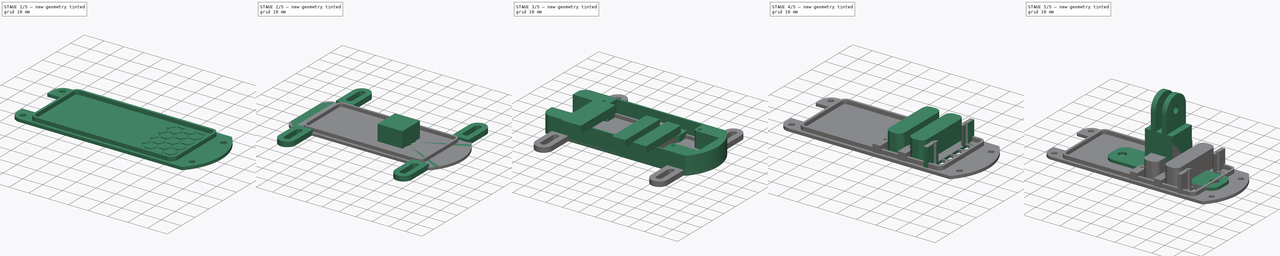
[diagram: build sequence overview — one tinted view per stage of 5, left to right]
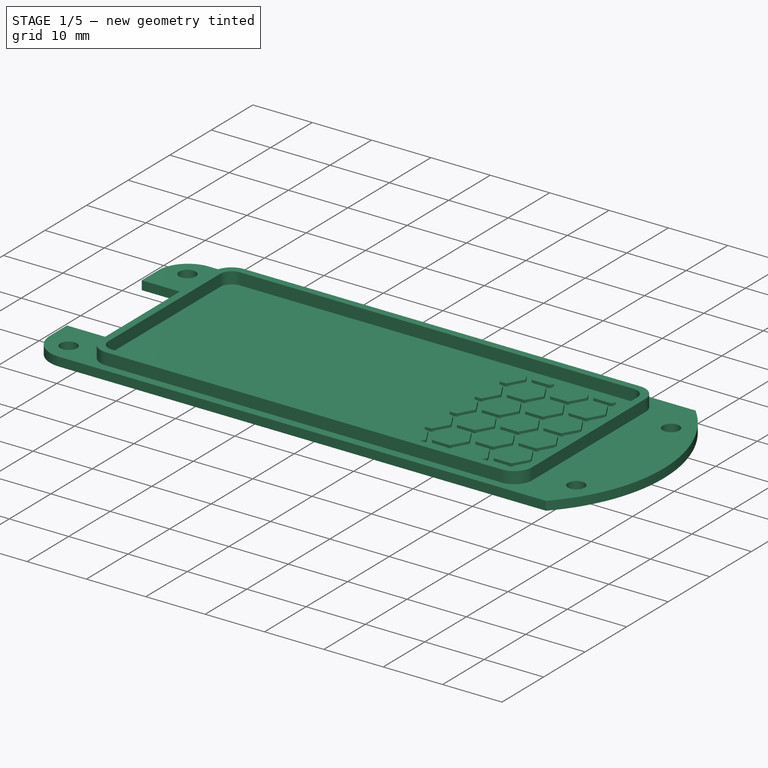
[diagram: stage 1 of 5 — iso view after this stage's code; geometry added in this stage tinted green]
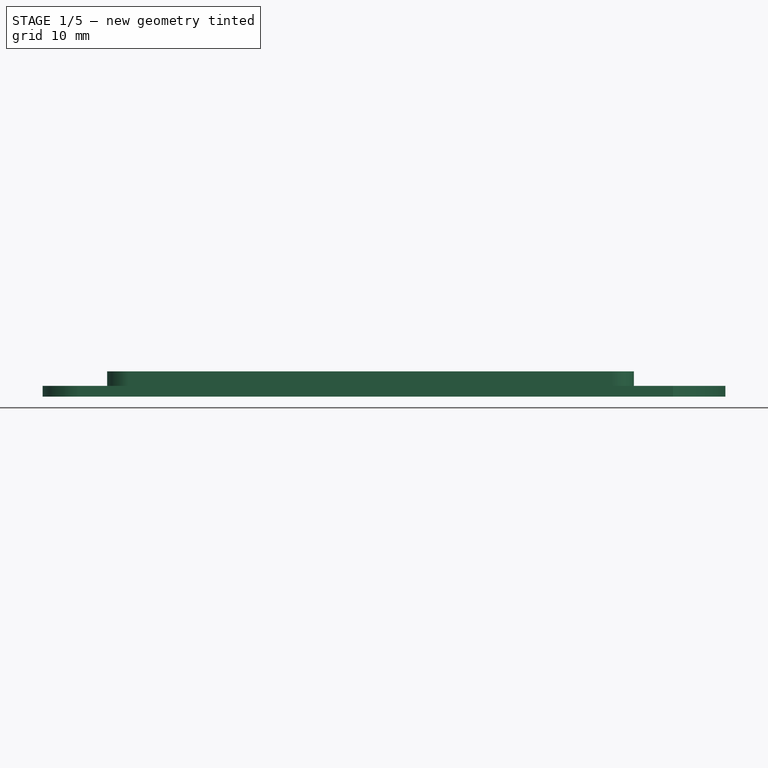
[diagram: stage 1 of 5 — front view after this stage's code; geometry added in this stage tinted green]
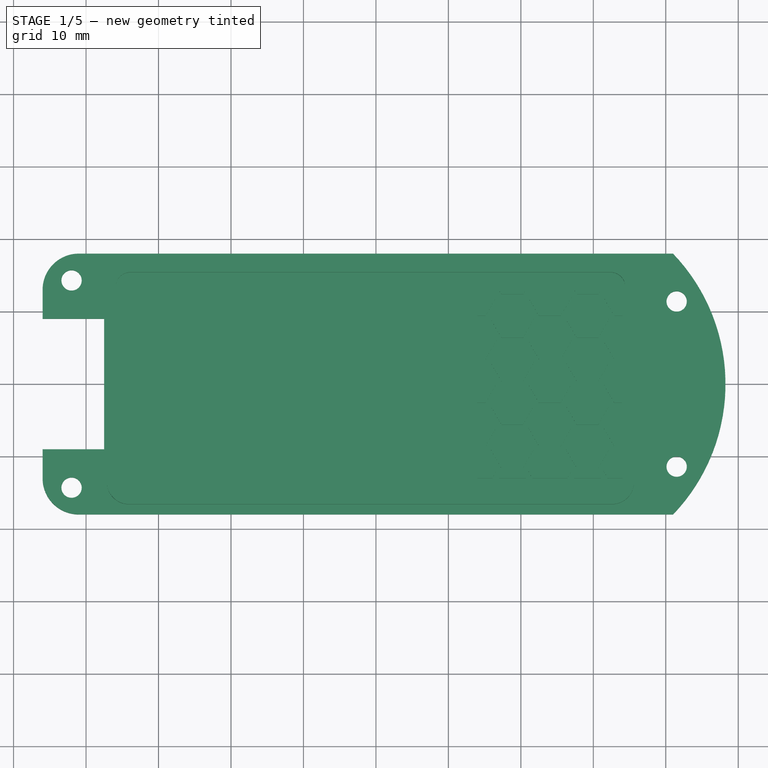
[diagram: stage 1 of 5 — top view after this stage's code; geometry added in this stage tinted green]
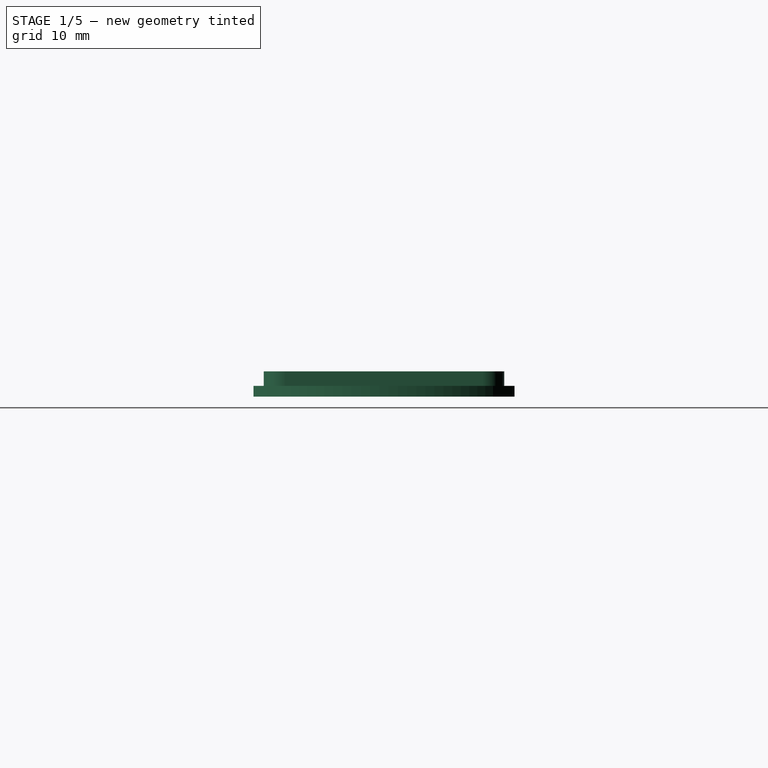
[diagram: stage 1 of 5 — right view after this stage's code; geometry added in this stage tinted green]
FCSTD DOCUMENT  (FreeCAD 0.19R)
Label: pizerohingedcasecamera_fisheye
License: All rights reserved
LicenseURL: http://en.wikipedia.org/wiki/All_rights_reserved
objects: Sketcher::SketchObject×11, PartDesign::Pad×11, PartDesign::Body×11, Part::Box×6, Part::MultiFuse×5, Part::FeaturePython×4, Part::Cut×4, PartDesign::ShapeBinder×4, App::Part×3, Part::Fillet×2, Part::Feature×1, Part::Cylinder×1, Part::Mirroring×1, Part::MultiCommon×1
note: 70 computed .brp shape members not serialized (recipe doc carries the construction recipe); baked Part::Feature solids carry a one-line shape summary decoded from their .brp

FEATURE [Sketcher::SketchObject] Sketch
  FullyConstrained = true
  MapMode = 5
  Support = -> [XY_Plane009]
  sketch-geometry (7):
    g0: LineSegment StartX=-56 StartY=13 StartZ=0 EndX=-56 EndY=-13 EndZ=0
    g1: LineSegment StartX=-51 StartY=18 StartZ=0 EndX=31 EndY=18 EndZ=0
    g2: LineSegment StartX=31 StartY=-18 StartZ=0 EndX=-51 EndY=-18 EndZ=0
    g3: ArcOfCircle CenterX=-51 CenterY=13 CenterZ=0 NormalX=0 NormalY=0 NormalZ=1 AngleXU=0 Radius=5 StartAngle=1.5708 EndAngle=3.14159
    g4: ArcOfCircle CenterX=-51 CenterY=-13 CenterZ=0 NormalX=0 NormalY=0 NormalZ=1 AngleXU=0 Radius=5 StartAngle=3.14159 EndAngle=4.71239
    g5: Circle CenterX=0 CenterY=0 CenterZ=0 NormalX=0 NormalY=0 NormalZ=1 AngleXU=0 Radius=8.5
    g6: ArcOfCircle CenterX=12.2383 CenterY=3.09831e-11 CenterZ=0 NormalX=0 NormalY=0 NormalZ=1 AngleXU=0 Radius=26 StartAngle=5.5185 EndAngle=7.04787
  constraints (17):
    c: Symmetric(g0,g0,g-1)
    c: Horizontal(g1)
    c: Horizontal(g2)
    c: Symmetric(g2,g1,g-1)
    c: Tangent(g3,g1) = 1.5708
    c: Tangent(g3,g0) = -1.5708
    c: DistanceX(g0,g-1) = 56
    c: DistanceY(g2,g-1) = 18
    c: Radius(g3) = 5
    c: Coincident(g5,g-1)
    c: Radius(g5) = 8.5
    c: Coincident(g6,g2)
    c: Radius(g6) = 26
    c: Coincident(g1,g6)
    c: Tangent(g4,g2) = 1.5708
    c: Tangent(g4,g0) = -1.5708
    c: DistanceX(g1,g1) = 82
FEATURE [Sketcher::SketchObject] Sketch020
  FullyConstrained = false
  MapMode = 5
  Support = -> [XY_Plane010]
  sketch-geometry (28):
    g0: LineSegment StartX=-56 StartY=13 StartZ=0 EndX=-56 EndY=9 EndZ=0
    g1: LineSegment StartX=-51 StartY=18 StartZ=0 EndX=31 EndY=18 EndZ=0
    g2: LineSegment StartX=31 StartY=-18 StartZ=0 EndX=-51 EndY=-18 EndZ=0
    g3: ArcOfCircle CenterX=-51 CenterY=13 CenterZ=0 NormalX=0 NormalY=0 NormalZ=1 AngleXU=0 Radius=5 StartAngle=1.5708 EndAngle=3.14159
    g4: ArcOfCircle CenterX=-51 CenterY=-13 CenterZ=0 NormalX=0 NormalY=0 NormalZ=1 AngleXU=0 Radius=5 StartAngle=3.14159 EndAngle=4.71239
    g5: LineSegment StartX=-56 StartY=-9 StartZ=0 EndX=-47.5 EndY=-9 EndZ=0
    g6: LineSegment StartX=-47.5 StartY=-9 StartZ=0 EndX=-47.5 EndY=-17 EndZ=0
    g7: LineSegment StartX=-47.5 StartY=-17 StartZ=0 EndX=26 EndY=-17 EndZ=0
    g8: LineSegment StartX=-56 StartY=9 StartZ=0 EndX=-47.5 EndY=9 EndZ=0
    g9: LineSegment StartX=-47.5 StartY=9 StartZ=0 EndX=-47.5 EndY=17 EndZ=0
    g10: LineSegment StartX=-47.5 StartY=17 StartZ=0 EndX=26 EndY=17 EndZ=0
    g11: LineSegment StartX=29 StartY=8.86 StartZ=0 EndX=29 EndY=14 EndZ=0
    g12: LineSegment StartX=29 StartY=-8.86 StartZ=0 EndX=29 EndY=-14 EndZ=0
    g13: LineSegment StartX=29.5 StartY=-8.36 StartZ=0 EndX=31.5 EndY=-8.36 EndZ=0
    g14: LineSegment StartX=33 StartY=-6.86 StartZ=0 EndX=33 EndY=6.86 EndZ=0
    g15: LineSegment StartX=29.5 StartY=8.36 StartZ=0 EndX=31.5 EndY=8.36 EndZ=0
    g16: LineSegment StartX=-56 StartY=-9 StartZ=0 EndX=-56 EndY=-13 EndZ=0
    g17: ArcOfCircle CenterX=26 CenterY=14 CenterZ=0 NormalX=0 NormalY=0 NormalZ=1 AngleXU=0 Radius=3 StartAngle=0 EndAngle=1.5708
    g18: ArcOfCircle CenterX=29.5 CenterY=8.86 CenterZ=0 NormalX=0 NormalY=0 NormalZ=1 AngleXU=0 Radius=0.5 StartAngle=3.14159 EndAngle=4.71239
    g19: ArcOfCircle CenterX=31.5 CenterY=6.86 CenterZ=0 NormalX=0 NormalY=0 NormalZ=1 AngleXU=0 Radius=1.5 StartAngle=0 EndAngle=1.5708
    g20: ArcOfCircle CenterX=29.5 CenterY=-8.86 CenterZ=0 NormalX=0 NormalY=0 NormalZ=1 AngleXU=0 Radius=0.5 StartAngle=1.5708 EndAngle=3.14159
    g21: ArcOfCircle CenterX=31.5 CenterY=-6.86 CenterZ=0 NormalX=0 NormalY=0 NormalZ=1 AngleXU=0 Radius=1.5 StartAngle=4.71239 EndAngle=6.28319
    g22: ArcOfCircle CenterX=26 CenterY=-14 CenterZ=0 NormalX=0 NormalY=0 NormalZ=1 AngleXU=0 Radius=3 StartAngle=4.71239 EndAngle=6.28319
    g23: Circle CenterX=-52 CenterY=-14.3 CenterZ=0 NormalX=0 NormalY=0 NormalZ=1 AngleXU=0 Radius=1
    g24: Circle CenterX=31.5 CenterY=11.4 CenterZ=0 NormalX=0 NormalY=0 NormalZ=1 AngleXU=0 Radius=1
    g25: Circle CenterX=31.5 CenterY=-11.4 CenterZ=0 NormalX=0 NormalY=0 NormalZ=1 AngleXU=0 Radius=1
    g26: Circle CenterX=-52 CenterY=14.3 CenterZ=0 NormalX=0 NormalY=0 NormalZ=1 AngleXU=0 Radius=1
    g27: ArcOfCircle CenterX=12.2383 CenterY=9e-16 CenterZ=0 NormalX=0 NormalY=0 NormalZ=1 AngleXU=0 Radius=26 StartAngle=5.5185 EndAngle=7.04787
  constraints (67):
    c: Symmetric(g16,g0,g-1)
    c: Horizontal(g1)
    c: Horizontal(g2)
    c: Symmetric(g2,g1,g-1)
    c: Tangent(g3,g1) = 1.5708
    c: Tangent(g3,g0) = -1.5708
    c: DistanceX(g16,g-1) = 56
    c: DistanceY(g2,g-1) = 18
    c: Radius(g3) = 5
    c: Horizontal(g5)
    c: Coincident(g6,g5)
    c: Vertical(g6)
    c: Coincident(g7,g6)
    c: Horizontal(g7)
    c: Horizontal(g8)
    c: Coincident(g9,g8)
    c: Coincident(g10,g9)
    c: Horizontal(g10)
    c: Vertical(g11)
    c: Vertical(g12)
    c: Vertical(g14)
    c: Horizontal(g15)
    c: Symmetric(g11,g12,g-1)
    c: Symmetric(g10,g7,g-1)
    c: Symmetric(g5,g8,g-1)
    c: Coincident(g0,g8)
    c: Coincident(g16,g5)
    c: Tangent(g0,g16)
    c: DistanceY(g9,g1) = 1
    c: Tangent(g17,g10) = 1.5708
    c: Tangent(g17,g11) = -1.5708
    c: Symmetric(g15,g13,g-1)
    c: Tangent(g20,g12) = -1.5708
    c: Horizontal(g13)
    c: Tangent(g20,g13) = 1.5708
    c: Tangent(g21,g14) = -1.5708
    c: Tangent(g19,g14) = -1.5708
    c: Tangent(g18,g15) = -1.5708
    c: Tangent(g18,g11) = 1.5708
    c: Tangent(g19,g15) = 1.5708
    c: Tangent(g21,g13) = -1.5708
    c: Tangent(g22,g12) = 1.5708
    c: Tangent(g22,g7) = -1.5708
    c: Radius(g23) = 1
    c: Symmetric(g26,g23,g-1)
    c: Equal(g26,g23)
    c: Equal(g25,g24)
    c: Symmetric(g24,g25,g-1)
    c: Radius(g25) = 1
    c: DistanceY(g-1,g24) = 11.4
    c: DistanceY(g-1,g26) = 14.3
    c: DistanceX(g-1,g14) = 33
    c: Radius(g22) = 3
    c: Radius(g20) = 0.5
    c: Radius(g21) = 1.5
    c: DistanceY(g6,g6) = 8
    c: DistanceX(g5,g5) = 8.5
    c: DistanceY(g13,g-1) = 8.36
    c: DistanceX(g26,g-1) = 52
    c: DistanceX(g-1,g24) = 31.5
    c: Vertical(g9)
    c: Coincident(g27,g1)
    c: Coincident(g27,g2)
    c: Radius(g27) = 26
    c: DistanceX(g1,g1) = 82
    c: Tangent(g4,g2) = 1.5708
    c: Tangent(g4,g16) = -1.5708
FEATURE [PartDesign::Pad] Pad007
  Direction = (1,1,1)
  Length = 20
  Length2 = 100
  Profile = -> Sketch020
  Type = 0
FEATURE [PartDesign::ShapeBinder] ShapeBinder002
  Support = -> [Sketch020]
  TraceSupport = false
FEATURE [PartDesign::ShapeBinder] ShapeBinder003
  Support = -> [Pad007]
  TraceSupport = false
FEATURE [Sketcher::SketchObject] Sketch028
  ExternalGeometry = -> [ShapeBinder002,ShapeBinder003]
  FullyConstrained = true
  MapMode = 5
  Support = -> [XY_Plane019]
  sketch-geometry (14):
    g0: LineSegment StartX=-51 StartY=18 StartZ=0 EndX=31 EndY=18 EndZ=0
    g1: LineSegment StartX=31 StartY=-18 StartZ=0 EndX=-51 EndY=-18 EndZ=0
    g2: ArcOfCircle CenterX=-51 CenterY=13 CenterZ=0 NormalX=0 NormalY=0 NormalZ=1 AngleXU=0 Radius=5 StartAngle=1.5708 EndAngle=3.14159
    g3: ArcOfCircle CenterX=-51 CenterY=-13 CenterZ=0 NormalX=0 NormalY=0 NormalZ=1 AngleXU=0 Radius=5 StartAngle=3.14159 EndAngle=4.71239
    g4: ArcOfCircle CenterX=12.2383 CenterY=2e-15 CenterZ=0 NormalX=0 NormalY=0 NormalZ=1 AngleXU=0 Radius=26 StartAngle=5.5185 EndAngle=7.04787
    g5: Circle CenterX=31.5 CenterY=11.4 CenterZ=0 NormalX=0 NormalY=0 NormalZ=1 AngleXU=0 Radius=1.4
    g6: Circle CenterX=31.5 CenterY=-11.4 CenterZ=0 NormalX=0 NormalY=0 NormalZ=1 AngleXU=0 Radius=1.4
    g7: Circle CenterX=-52 CenterY=14.3 CenterZ=0 NormalX=0 NormalY=0 NormalZ=1 AngleXU=0 Radius=1.4
    g8: Circle CenterX=-52 CenterY=-14.3 CenterZ=0 NormalX=0 NormalY=0 NormalZ=1 AngleXU=0 Radius=1.4
    g9: LineSegment StartX=-56 StartY=13 StartZ=0 EndX=-56 EndY=9 EndZ=0
    g10: LineSegment StartX=-56 StartY=-13 StartZ=0 EndX=-56 EndY=-9 EndZ=0
    g11: LineSegment StartX=-56 StartY=-9 StartZ=0 EndX=-47.5 EndY=-9 EndZ=0
    g12: LineSegment StartX=-56 StartY=9 StartZ=0 EndX=-47.5 EndY=9 EndZ=0
    g13: LineSegment StartX=-47.5 StartY=9 StartZ=0 EndX=-47.5 EndY=-9 EndZ=0
  constraints (32):
    c: Horizontal(g0)
    c: Horizontal(g1)
    c: Symmetric(g1,g0,g-1)
    c: Tangent(g2,g0) = 1.5708
    c: DistanceY(g1,g-1) = 18
    c: Radius(g2) = 5
    c: Coincident(g4,g1)
    c: Radius(g4) = 26
    c: Coincident(g0,g4)
    c: Tangent(g3,g1) = 1.5708
    c: DistanceX(g0,g0) = 82
    c: Coincident(g5,g-6)
    c: Coincident(g6,g-5)
    c: Equal(g5,g6)
    c: Coincident(g7,g-3)
    c: Coincident(g8,g-4)
    c: Radius(g5) = 1.4
    c: Equal(g6,g8)
    c: Equal(g8,g7)
    c: Vertical(g9)
    c: Vertical(g10)
    c: Tangent(g10,g3) = 1.5708
    c: Tangent(g9,g2) = -1.5708
    c: Coincident(g10,g-12)
    c: Coincident(g11,g10)
    c: Coincident(g11,g-12)
    c: Coincident(g9,g-7)
    c: Coincident(g12,g9)
    c: Coincident(g12,g-8)
    c: Coincident(g13,g12)
    c: Coincident(g13,g11)
    c: Radius(g3) = 5
FEATURE [PartDesign::Pad] Pad016
  Direction = (1,1,1)
  Length = 1.5
  Length2 = 100
  Profile = -> Sketch028
  Type = 0
FEATURE [PartDesign::Body] Body011  label="cover body"
  Group = -> [Sketch028,Pad016,ShapeBinder002,ShapeBinder003]
  Origin = -> Origin019
  Tip = -> Pad016
FEATURE [PartDesign::ShapeBinder] ShapeBinder005
  Support = -> [Pad007]
  TraceSupport = false
FEATURE [Sketcher::SketchObject] Sketch029
  ExternalGeometry = -> [ShapeBinder005]
  FullyConstrained = false
  MapMode = 5
  Support = -> [XY_Plane020]
  sketch-geometry (24):
    g0: LineSegment StartX=-47.1 StartY=13.6 StartZ=0 EndX=-47.1 EndY=-13.6 EndZ=0
    g1: LineSegment StartX=-44.1 StartY=-16.6 StartZ=0 EndX=22.6 EndY=-16.6 EndZ=0
    g2: LineSegment StartX=-44.1 StartY=16.6 StartZ=0 EndX=22.6 EndY=16.6 EndZ=0
    g3: LineSegment StartX=25.6 StartY=13.6 StartZ=0 EndX=25.6 EndY=-13.6 EndZ=0
    g4: LineSegment StartX=-43.9 StartY=15.4 StartZ=0 EndX=22.4 EndY=15.4 EndZ=0
    g5: LineSegment StartX=24.4 StartY=13.4 StartZ=0 EndX=24.4 EndY=-13.4 EndZ=0
    g6: LineSegment StartX=22.4 StartY=-15.4 StartZ=0 EndX=-43.9 EndY=-15.4 EndZ=0
    g7: LineSegment StartX=-45.9 StartY=-13.4 StartZ=0 EndX=-45.9 EndY=13.4 EndZ=0
    g8: GeomPoint X=-8.44206 Y=15.4 Z=0
    g9: GeomPoint X=-9.78776 Y=16.6 Z=0
    g10: GeomPoint X=-45.9 Y=1.2878 Z=0
    g11: GeomPoint X=-47.1 Y=3.30634 Z=0
    g12: GeomPoint X=-8.96045 Y=-15.4 Z=0
    g13: GeomPoint X=-7.00918 Y=-16.6 Z=0
    g14: GeomPoint X=24.4 Y=2.70256 Z=0
    g15: GeomPoint X=25.6 Y=4.38469 Z=0
    g16: ArcOfCircle CenterX=22.4 CenterY=13.4 CenterZ=0 NormalX=0 NormalY=0 NormalZ=1 AngleXU=0 Radius=2 StartAngle=0 EndAngle=1.5708
    g17: ArcOfCircle CenterX=22.4 CenterY=-13.4 CenterZ=0 NormalX=0 NormalY=0 NormalZ=1 AngleXU=0 Radius=2 StartAngle=4.71239 EndAngle=6.28319
    g18: ArcOfCircle CenterX=-43.9 CenterY=-13.4 CenterZ=0 NormalX=0 NormalY=0 NormalZ=1 AngleXU=0 Radius=2 StartAngle=3.14159 EndAngle=4.71239
    g19: ArcOfCircle CenterX=-43.9 CenterY=13.4 CenterZ=0 NormalX=0 NormalY=0 NormalZ=1 AngleXU=0 Radius=2 StartAngle=1.5708 EndAngle=3.14159
    g20: ArcOfCircle CenterX=22.6 CenterY=13.6 CenterZ=0 NormalX=0 NormalY=0 NormalZ=1 AngleXU=0 Radius=3 StartAngle=1e-16 EndAngle=1.5708
    g21: ArcOfCircle CenterX=22.6 CenterY=-13.6 CenterZ=0 NormalX=0 NormalY=0 NormalZ=1 AngleXU=0 Radius=3 StartAngle=4.71239 EndAngle=6.28319
    g22: ArcOfCircle CenterX=-44.1 CenterY=-13.6 CenterZ=0 NormalX=0 NormalY=0 NormalZ=1 AngleXU=0 Radius=3 StartAngle=3.14159 EndAngle=4.71239
    g23: ArcOfCircle CenterX=-44.1 CenterY=13.6 CenterZ=0 NormalX=0 NormalY=0 NormalZ=1 AngleXU=0 Radius=3 StartAngle=1.5708 EndAngle=3.14159
  constraints (48):
    c: Vertical(g0)
    c: Horizontal(g1)
    c: Horizontal(g2)
    c: Vertical(g3)
    c: Horizontal(g4)
    c: Horizontal(g6)
    c: Vertical(g5)
    c: Vertical(g7)
    c: PointOnObject(g8,g4)
    c: PointOnObject(g9,g2)
    c: PointOnObject(g10,g7)
    c: PointOnObject(g11,g0)
    c: DistanceX(g11,g10) = 1.2
    c: DistanceX(g-5,g11) = 0.4
    c: DistanceY(g9,g-3) = 0.4
    c: DistanceY(g8,g9) = 1.2
    c: PointOnObject(g12,g6)
    c: PointOnObject(g13,g1)
    c: DistanceY(g13,g12) = 1.2
    c: DistanceY(g-6,g13) = 0.4
    c: PointOnObject(g14,g5)
    c: PointOnObject(g15,g3)
    c: DistanceX(g14,g15) = 1.2
    c: Tangent(g4,g16) = 1.5708
    c: Tangent(g5,g16) = 1.5708
    c: Tangent(g6,g17) = 1.5708
    c: Tangent(g5,g17) = 1.5708
    c: Tangent(g6,g18) = 1.5708
    c: Tangent(g7,g18) = 1.5708
    c: Tangent(g7,g19) = 1.5708
    c: Tangent(g4,g19) = 1.5708
    c: Equal(g19,g18)
    c: Equal(g18,g17)
    c: Equal(g17,g16)
    c: DistanceX(g15,g-3) = 0.4
    c: Tangent(g3,g20) = 1.5708
    c: Tangent(g2,g20) = 1.5708
    c: Tangent(g3,g21) = 1.5708
    c: Tangent(g1,g21) = -1.5708
    c: Tangent(g1,g22) = -1.5708
    c: Tangent(g0,g22) = -1.5708
    c: Tangent(g0,g23) = -1.5708
    c: Tangent(g2,g23) = 1.5708
    c: Equal(g20,g21)
    c: Equal(g21,g22)
    c: Equal(g22,g23)
    c: Radius(g21) = 3
    c: Radius(g16) = 2
FEATURE [PartDesign::Pad] Pad017
  Direction = (1,1,1)
  Length = 3.5
  Length2 = 100
  Profile = -> Sketch029
  Type = 0
FEATURE [PartDesign::Body] Body012  label="cover body001"
  Group = -> [Sketch029,Pad017,ShapeBinder005]
  Origin = -> Origin020
  Tip = -> Pad017
FEATURE [Part::FeaturePython] HoneycombSolid  # WARN: FeaturePython — macro-defined, semantics opaque (R4)
  Circumradius = 3
  Height = 2
  Length = 20
  Placement = pos=(4,-13,0) rot=(0,0,1;0rad)
  Tickness = 0.8
  Width = 26
  expr: .Placement.Base.y = -Width / 2
FEATURE [Part::Box] Box015  label="honeycomb space"
  AttacherType = Attacher::AttachEngine3D
  Height = 2
  Length = 20
  Placement = pos=(4,-13,0) rot=(0,0,1;0rad)
  Width = 26
  expr: Height = HoneycombSolid.Height
  expr: .Placement.Base.y = HoneycombSolid.Placement.Base.y
  expr: .Placement.Base.x = HoneycombSolid.Placement.Base.x
  expr: Width = HoneycombSolid.Width
  expr: Length = <<HoneycombSolid>>.Length
FEATURE [Part::Cut] Cut002006  label="honeycomb"
  Base = -> Box015
  Tool = -> HoneycombSolid
FEATURE [Part::MultiFuse] Fusion011  label="cover fusion"
  Shapes = -> [Body012,Body011]
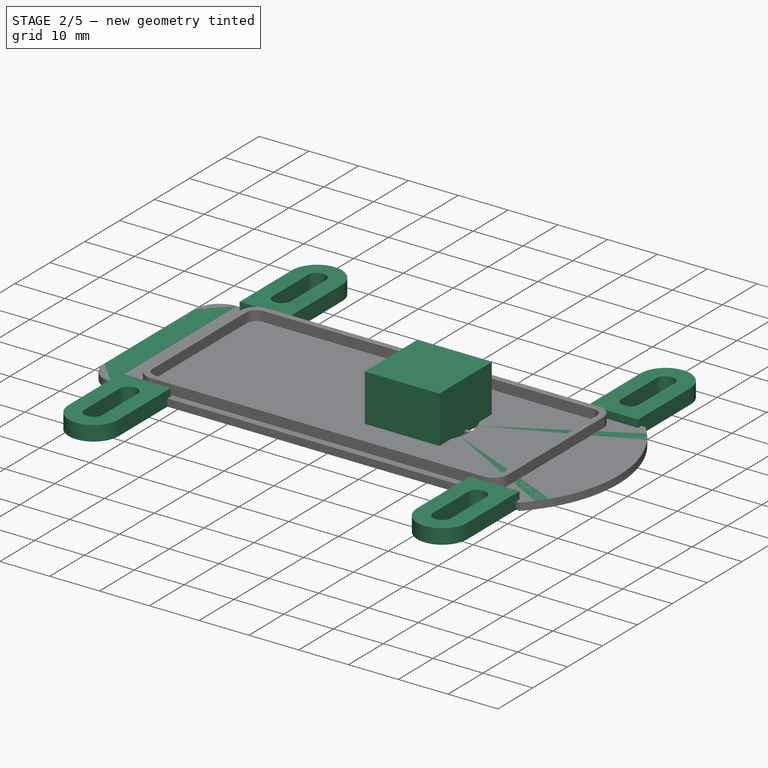
[diagram: stage 2 of 5 — iso view after this stage's code; geometry added in this stage tinted green]
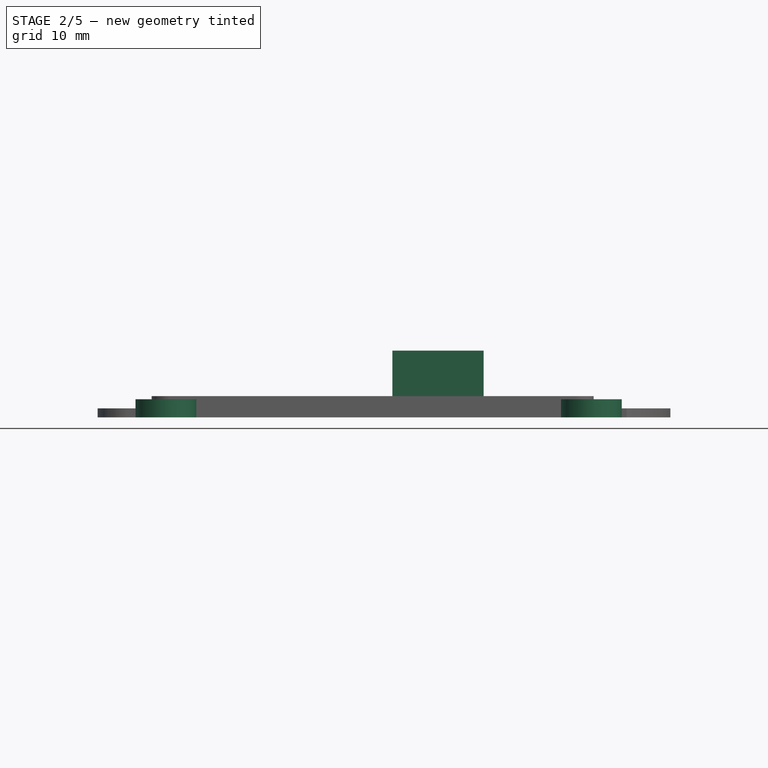
[diagram: stage 2 of 5 — front view after this stage's code; geometry added in this stage tinted green]
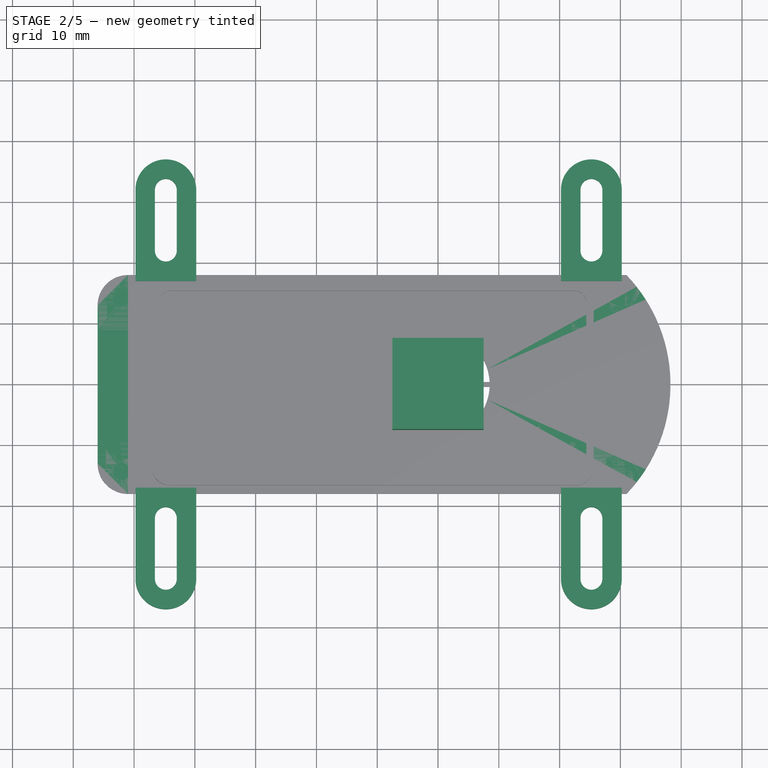
[diagram: stage 2 of 5 — top view after this stage's code; geometry added in this stage tinted green]
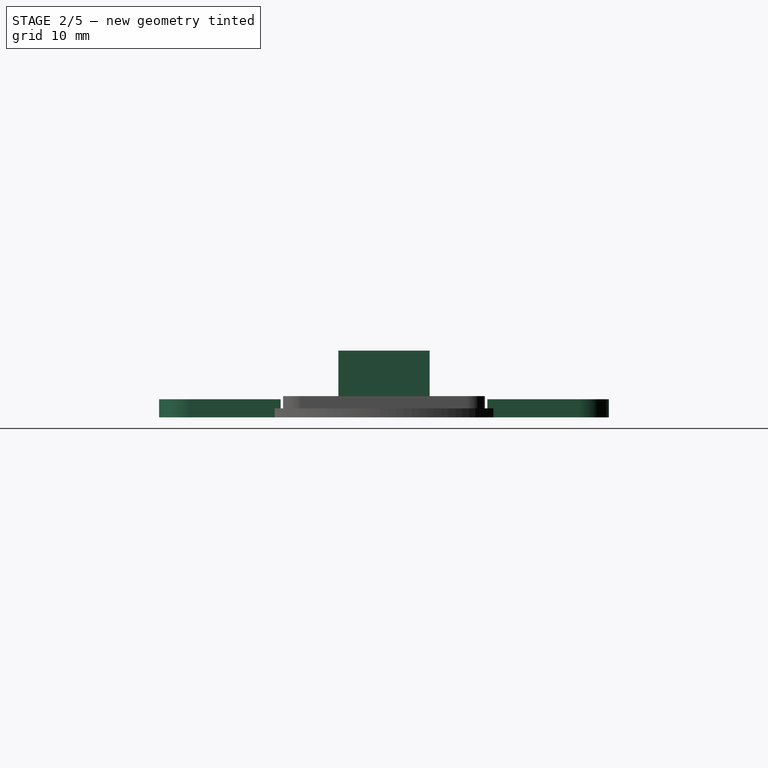
[diagram: stage 2 of 5 — right view after this stage's code; geometry added in this stage tinted green]
FEATURE [PartDesign::Body] Body009  label="Body"
  Group = -> [Sketch026,Pad014]
  Origin = -> Origin017
  Tip = -> Pad014
FEATURE [PartDesign::Pad] Pad
  Direction = (1,1,1)
  Length = 1.5
  Length2 = 100
  Profile = -> Sketch
  Type = 0
FEATURE [PartDesign::Body] Body  label="base body"
  Group = -> [Sketch,Pad]
  Origin = -> Origin009
  Tip = -> Pad
FEATURE [Part::Box] Box014  label="camera hole extract cube"
  AttacherType = Attacher::AttachEngine3D
  Height = 10
  Length = 15
  Placement = pos=(-7.5,-7.5,1) rot=(0,0,1;0rad)
  Width = 15
  expr: .Placement.Base.y = -Width / 2
  expr: .Placement.Base.x = -Length / 2
FEATURE [Part::Cut] Cut002007  label="cover cut"
  Base = -> Fusion011
  Tool = -> Cut002006
FEATURE [Sketcher::SketchObject] Sketch030
  FullyConstrained = false
  MapMode = 5
  Support = -> [XY_Plane022]
  sketch-geometry (8):
    g0: LineSegment StartX=-49.7713 StartY=17 StartZ=0 EndX=-49.7713 EndY=32 EndZ=0
    g1: LineSegment StartX=-39.7713 StartY=17 StartZ=0 EndX=-39.7713 EndY=32 EndZ=0
    g2: ArcOfCircle CenterX=-44.7713 CenterY=32 CenterZ=0 NormalX=0 NormalY=0 NormalZ=1 AngleXU=0 Radius=5 StartAngle=0 EndAngle=3.14159
    g3: LineSegment StartX=-46.5713 StartY=32 StartZ=0 EndX=-46.5713 EndY=22 EndZ=0
    g4: LineSegment StartX=-42.9713 StartY=32 StartZ=0 EndX=-42.9713 EndY=22 EndZ=0
    g5: ArcOfCircle CenterX=-44.7713 CenterY=32 CenterZ=0 NormalX=0 NormalY=0 NormalZ=1 AngleXU=0 Radius=1.8 StartAngle=5e-16 EndAngle=3.14159
    g6: ArcOfCircle CenterX=-44.7713 CenterY=22 CenterZ=0 NormalX=0 NormalY=0 NormalZ=1 AngleXU=0 Radius=1.8 StartAngle=3.14159 EndAngle=6.28319
    g7: LineSegment StartX=-49.7713 StartY=17 StartZ=0 EndX=-39.7713 EndY=17 EndZ=0
  constraints (19):
    c: Vertical(g1)
    c: Vertical(g0)
    c: Equal(g0,g1)
    c: Tangent(g2,g1) = -1.5708
    c: Tangent(g2,g0) = 1.5708
    c: Radius(g2) = 5
    c: Vertical(g4)
    c: Vertical(g3)
    c: Tangent(g5,g3) = -1.5708
    c: Tangent(g5,g4) = 1.5708
    c: Coincident(g5,g2)
    c: Radius(g5) = 1.8
    c: Tangent(g6,g4) = 1.5708
    c: Tangent(g6,g3) = -1.5708
    c: Coincident(g7,g0)
    c: Coincident(g7,g1)
    c: DistanceY(g0,g0) = 15
    c: DistanceY(g3,g3) = 10
    c: DistanceY(g-1,g1) = 17
FEATURE [PartDesign::Pad] Pad018
  Direction = (1,1,1)
  Length = 3
  Length2 = 100
  Profile = -> Sketch030
  Type = 0
FEATURE [PartDesign::Body] Body013  label="attach body"
  Group = -> [Sketch030,Pad018]
  Origin = -> Origin022
  Tip = -> Pad018
FEATURE [Part::Mirroring] Part__Mirroring001  label="attach body (Mirror #2)"
  Base = (0,0,0)
  Normal = (0,1,0)
  Source = -> Body013
FEATURE [Part::MultiFuse] Fusion012  label="attachment pair"
  Shapes = -> [Part__Mirroring001,Body013]
FEATURE [Part::FeaturePython] Array007  label="attachment array"  # Draft array (typed FeaturePython)
  Angle = 360
  ArrayType = 0
  Axis = (0,0,1)
  Base = -> Fusion012
  Center = (0,0,0)
  Count = 2
  ExpandArray = false
  Fuse = false
  IntervalAxis = (0,0,0)
  IntervalX = (70,0,0)
  IntervalY = (0,100,0)
  IntervalZ = (0,0,100)
  NumberCircles = 3
  NumberPolar = 5
  NumberX = 2
  NumberY = 1
  NumberZ = 1
  PlacementList = 2 placements: [(0,0,0),(70,0,0)]
  RadialDistance = 50
  ScaleList = (2) [(1,1,1),(1,1,1)]
  Symmetry = 1
  TangentialDistance = 25
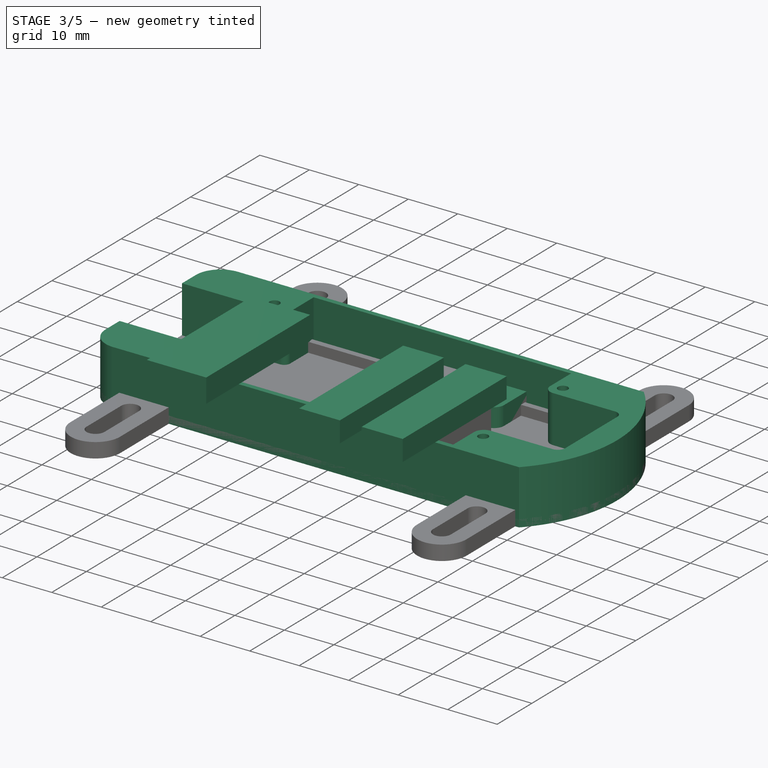
[diagram: stage 3 of 5 — iso view after this stage's code; geometry added in this stage tinted green]
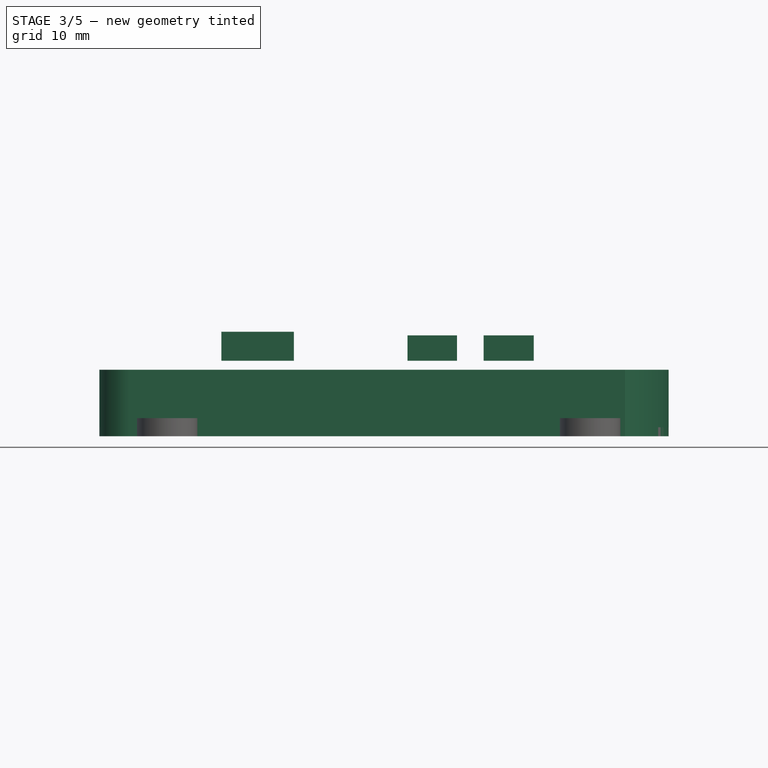
[diagram: stage 3 of 5 — front view after this stage's code; geometry added in this stage tinted green]
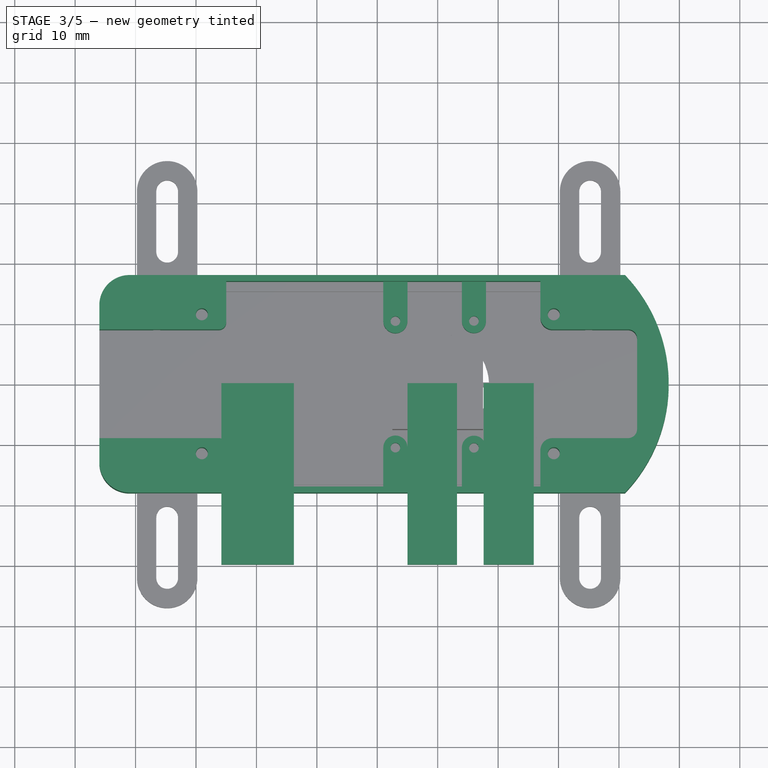
[diagram: stage 3 of 5 — top view after this stage's code; geometry added in this stage tinted green]
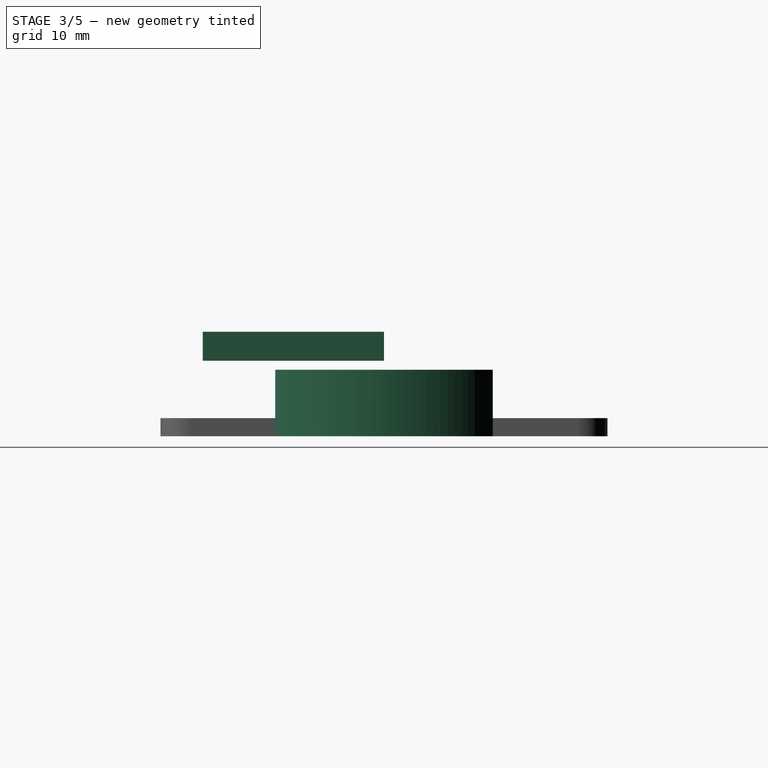
[diagram: stage 3 of 5 — right view after this stage's code; geometry added in this stage tinted green]
FEATURE [PartDesign::Body] Body002  label="level3 body"
  Group = -> [Sketch020,Pad007]
  Origin = -> Origin010
  Tip = -> Pad007
FEATURE [Sketcher::SketchObject] Sketch021
  FullyConstrained = false
  MapMode = 5
  Support = -> [XY_Plane011]
  sketch-geometry (28):
    g0: LineSegment StartX=-56 StartY=13 StartZ=0 EndX=-56 EndY=9 EndZ=0
    g1: LineSegment StartX=-51 StartY=18 StartZ=0 EndX=31 EndY=18 EndZ=0
    g2: LineSegment StartX=31 StartY=-18 StartZ=0 EndX=-51 EndY=-18 EndZ=0
    g3: ArcOfCircle CenterX=-51 CenterY=13 CenterZ=0 NormalX=0 NormalY=0 NormalZ=1 AngleXU=0 Radius=5 StartAngle=1.5708 EndAngle=3.14159
    g4: ArcOfCircle CenterX=-51 CenterY=-13 CenterZ=0 NormalX=0 NormalY=0 NormalZ=1 AngleXU=0 Radius=5 StartAngle=3.14159 EndAngle=4.71239
    g5: LineSegment StartX=-56 StartY=-9 StartZ=0 EndX=-36.2116 EndY=-9 EndZ=0
    g6: LineSegment StartX=-35 StartY=-10.2116 StartZ=0 EndX=-35 EndY=-17 EndZ=0
    g7: LineSegment StartX=-35 StartY=-17 StartZ=0 EndX=17 EndY=-17 EndZ=0
    g8: LineSegment StartX=-56 StartY=9 StartZ=0 EndX=-36.2116 EndY=9 EndZ=0
    g9: LineSegment StartX=-35 StartY=10.2116 StartZ=0 EndX=-35 EndY=17 EndZ=0
    g10: LineSegment StartX=-35 StartY=17 StartZ=0 EndX=17 EndY=17 EndZ=0
    g11: LineSegment StartX=19 StartY=-9 StartZ=0 EndX=31.5 EndY=-9 EndZ=0
    g12: LineSegment StartX=33 StartY=-7.5 StartZ=0 EndX=33 EndY=7.5 EndZ=0
    g13: LineSegment StartX=19 StartY=9 StartZ=0 EndX=31.5 EndY=9 EndZ=0
    g14: LineSegment StartX=-56 StartY=-9 StartZ=0 EndX=-56 EndY=-13 EndZ=0
    g15: ArcOfCircle CenterX=31.5 CenterY=7.5 CenterZ=0 NormalX=0 NormalY=0 NormalZ=1 AngleXU=0 Radius=1.5 StartAngle=0 EndAngle=1.5708
    g16: ArcOfCircle CenterX=19 CenterY=-11 CenterZ=0 NormalX=0 NormalY=0 NormalZ=1 AngleXU=0 Radius=2 StartAngle=1.5708 EndAngle=3.14159
    g17: ArcOfCircle CenterX=31.5 CenterY=-7.5 CenterZ=0 NormalX=0 NormalY=0 NormalZ=1 AngleXU=0 Radius=1.5 StartAngle=4.71239 EndAngle=6.28319
    g18: ArcOfCircle CenterX=-36.2116 CenterY=-10.2116 CenterZ=0 NormalX=0 NormalY=0 NormalZ=1 AngleXU=0 Radius=1.21156 StartAngle=-9e-16 EndAngle=1.5708
    g19: ArcOfCircle CenterX=-36.2116 CenterY=10.2116 CenterZ=0 NormalX=0 NormalY=0 NormalZ=1 AngleXU=0 Radius=1.21156 StartAngle=4.71239 EndAngle=6.28319
    g20: LineSegment StartX=17 StartY=17 StartZ=0 EndX=17 EndY=11 EndZ=0
    g21: LineSegment StartX=17 StartY=-17 StartZ=0 EndX=17 EndY=-11 EndZ=0
    g22: ArcOfCircle CenterX=19 CenterY=11 CenterZ=0 NormalX=0 NormalY=0 NormalZ=1 AngleXU=0 Radius=2 StartAngle=3.14159 EndAngle=4.71239
    g23: Circle CenterX=-39.0377 CenterY=11.5 CenterZ=0 NormalX=0 NormalY=0 NormalZ=1 AngleXU=0 Radius=1
    g24: Circle CenterX=-39.0377 CenterY=-11.5 CenterZ=0 NormalX=0 NormalY=0 NormalZ=1 AngleXU=0 Radius=1
    g25: Circle CenterX=19.2152 CenterY=11.5 CenterZ=0 NormalX=0 NormalY=0 NormalZ=1 AngleXU=0 Radius=1
    g26: Circle CenterX=19.2152 CenterY=-11.5 CenterZ=0 NormalX=0 NormalY=0 NormalZ=1 AngleXU=0 Radius=1
    g27: ArcOfCircle CenterX=12.2383 CenterY=1.1e-15 CenterZ=0 NormalX=0 NormalY=0 NormalZ=1 AngleXU=0 Radius=26 StartAngle=5.5185 EndAngle=7.04787
  constraints (69):
    c: Symmetric(g14,g0,g-1)
    c: Horizontal(g1)
    c: Horizontal(g2)
    c: Coincident(g4,g14)
    c: Symmetric(g2,g1,g-1)
    c: Equal(g3,g4)
    c: Tangent(g3,g1) = 1.5708
    c: Tangent(g3,g0) = -1.5708
    c: DistanceX(g14,g-1) = 56
    c: DistanceY(g2,g-1) = 18
    c: Radius(g3) = 5
    c: Horizontal(g5)
    c: Vertical(g6)
    c: Coincident(g7,g6)
    c: Horizontal(g7)
    c: Horizontal(g8)
    c: Coincident(g10,g9)
    c: Horizontal(g10)
    c: Vertical(g12)
    c: Horizontal(g13)
    c: Symmetric(g10,g7,g-1)
    c: Coincident(g0,g8)
    c: Coincident(g14,g5)
    c: Tangent(g0,g14)
    c: DistanceY(g9,g1) = 1
    c: Symmetric(g13,g11,g-1)
    c: Horizontal(g11)
    c: Tangent(g16,g11) = 1.5708
    c: Tangent(g17,g12) = -1.5708
    c: Tangent(g15,g12) = -1.5708
    c: Tangent(g15,g13) = 1.5708
    c: Tangent(g17,g11) = -1.5708
    c: DistanceX(g-1,g12) = 33
    c: Radius(g17) = 1.5
    c: Tangent(g6,g18) = 1.5708
    c: Tangent(g5,g18) = 1.5708
    c: DistanceY(g6,g5) = 8
    c: Vertical(g9)
    c: Tangent(g8,g19) = -1.5708
    c: Tangent(g9,g19) = -1.5708
    c: DistanceY(g8,g9) = 8
    c: Equal(g8,g5)
    c: Equal(g9,g6)
    c: DistanceX(g9,g-1) = 35
    c: Coincident(g20,g10)
    c: Vertical(g20)
    c: DistanceX(g-1,g20) = 17
    c: DistanceY(g11,g-1) = 9
    c: Coincident(g21,g7)
    c: Vertical(g21)
    c: Tangent(g22,g20) = -1.5708
    c: Tangent(g22,g13) = -1.5708
    c: Tangent(g21,g16) = 1.5708
    c: Equal(g16,g22)
    c: Radius(g16) = 2
    c: Symmetric(g24,g23,g-1)
    c: Radius(g23) = 1
    c: Equal(g23,g24)
    c: DistanceY(g-1,g23) = 11.5
    c: Symmetric(g26,g25,g-1)
    c: Radius(g25) = 1
    c: Equal(g25,g26)
    c: DistanceY(g-1,g25) = 11.5
    c: DistanceY(g-1,g13) = 9
    c: Coincident(g27,g1)
    c: Coincident(g27,g2)
    c: Radius(g27) = 26
    c: DistanceX(g1,g1) = 82
    c: Tangent(g4,g2) = 1.5708
FEATURE [PartDesign::Pad] Pad008
  Direction = (1,1,1)
  Length = 11
  Length2 = 100
  Profile = -> Sketch021
  Type = 0
FEATURE [PartDesign::Body] Body003  label="level2 body"
  Group = -> [Sketch021,Pad008]
  Origin = -> Origin011
  Tip = -> Pad008
FEATURE [PartDesign::ShapeBinder] ShapeBinder001
  Support = -> [Sketch021]
  TraceSupport = false
FEATURE [Sketcher::SketchObject] Sketch022
  ExternalGeometry = -> [ShapeBinder001]
  FullyConstrained = false
  MapMode = 5
  Support = -> [XY_Plane012]
  sketch-geometry (10):
    g0: LineSegment StartX=-9 StartY=18 StartZ=0 EndX=-9 EndY=10.4707 EndZ=0
    g1: LineSegment StartX=-5 StartY=17 StartZ=0 EndX=-5 EndY=10.4707 EndZ=0
    g2: LineSegment StartX=4 StartY=17 StartZ=0 EndX=4 EndY=10.5 EndZ=0
    g3: LineSegment StartX=8 StartY=18 StartZ=0 EndX=8 EndY=10.5 EndZ=0
    g4: LineSegment StartX=8 StartY=18 StartZ=0 EndX=-9 EndY=18 EndZ=0
    g5: ArcOfCircle CenterX=-7 CenterY=10.4707 CenterZ=0 NormalX=0 NormalY=0 NormalZ=1 AngleXU=0 Radius=2 StartAngle=3.14159 EndAngle=6.28319
    g6: ArcOfCircle CenterX=6 CenterY=10.5 CenterZ=0 NormalX=0 NormalY=0 NormalZ=1 AngleXU=0 Radius=2 StartAngle=3.14159 EndAngle=6.28319
    g7: Circle CenterX=-7 CenterY=10.4707 CenterZ=0 NormalX=0 NormalY=0 NormalZ=1 AngleXU=0 Radius=0.8
    g8: Circle CenterX=6 CenterY=10.5 CenterZ=0 NormalX=0 NormalY=0 NormalZ=1 AngleXU=0 Radius=0.8
    g9: LineSegment StartX=-5 StartY=17 StartZ=0 EndX=4 EndY=17 EndZ=0
  constraints (26):
    c: Vertical(g0)
    c: Vertical(g1)
    c: PointOnObject(g0,g-4)
    c: PointOnObject(g1,g-3)
    c: PointOnObject(g2,g-3)
    c: Vertical(g2)
    c: Vertical(g3)
    c: PointOnObject(g3,g-4)
    c: Coincident(g4,g3)
    c: Coincident(g4,g0)
    c: Tangent(g6,g3) = 1.5708
    c: Tangent(g6,g2) = -1.5708
    c: Tangent(g5,g1) = 1.5708
    c: Tangent(g5,g0) = -1.5708
    c: DistanceX(g0,g1) = 4
    c: DistanceX(g2,g3) = 4
    c: DistanceY(g6,g2) = 6.5
    c: Coincident(g7,g5)
    c: Coincident(g8,g6)
    c: Radius(g7) = 0.8
    c: Equal(g8,g7)
    c: DistanceX(g5,g6) = 13
    c: DistanceX(g5,g-1) = 7
    c: DistanceX(g6,g-7) = 11
    c: Coincident(g9,g1)
    c: Coincident(g9,g2)
FEATURE [PartDesign::Pad] Pad009
  Direction = (1,1,1)
  Length = 5.3
  Length2 = 100
  Profile = -> Sketch022
  Type = 0
FEATURE [PartDesign::Body] Body004  label="level 1 body"
  Group = -> [Sketch022,ShapeBinder001,Pad009]
  Origin = -> Origin012
  Tip = -> Pad009
FEATURE [Sketcher::SketchObject] MirroredSketch
  FullyConstrained = false
  sketch-geometry (10):
    g0: LineSegment StartX=-9 StartY=-18 StartZ=0 EndX=-9 EndY=-10.4707 EndZ=0
    g1: LineSegment StartX=-5 StartY=-17 StartZ=0 EndX=-5 EndY=-10.4707 EndZ=0
    g2: LineSegment StartX=4 StartY=-17 StartZ=0 EndX=4 EndY=-10.5 EndZ=0
    g3: LineSegment StartX=8 StartY=-18 StartZ=0 EndX=8 EndY=-10.5 EndZ=0
    g4: LineSegment StartX=8 StartY=-18 StartZ=0 EndX=-9 EndY=-18 EndZ=0
    g5: ArcOfCircle CenterX=-7 CenterY=-10.4707 CenterZ=0 NormalX=0 NormalY=0 NormalZ=1 AngleXU=0 Radius=2 StartAngle=0 EndAngle=3.14159
    g6: ArcOfCircle CenterX=6 CenterY=-10.5 CenterZ=0 NormalX=0 NormalY=0 NormalZ=1 AngleXU=0 Radius=2 StartAngle=0 EndAngle=3.14159
    g7: Circle CenterX=-7 CenterY=-10.4707 CenterZ=0 NormalX=0 NormalY=0 NormalZ=1 AngleXU=0 Radius=0.8
    g8: Circle CenterX=6 CenterY=-10.5 CenterZ=0 NormalX=0 NormalY=0 NormalZ=1 AngleXU=0 Radius=0.8
    g9: LineSegment StartX=-5 StartY=-17 StartZ=0 EndX=4 EndY=-17 EndZ=0
  constraints (20):
    c: Vertical(g0)
    c: Vertical(g1)
    c: Vertical(g2)
    c: Vertical(g3)
    c: Coincident(g4,g3)
    c: Coincident(g4,g0)
    c: Tangent(g6,g3) = -1.5708
    c: Tangent(g6,g2) = 1.5708
    c: Tangent(g5,g1) = -1.5708
    c: Tangent(g5,g0) = 1.5708
    c: Coincident(g7,g5)
    c: Coincident(g8,g6)
    c: Radius(g7) = 0.8
    c: Equal(g8,g7)
    c: Coincident(g9,g1)
    c: Coincident(g9,g2)
    c: DistanceX(g0,g1) = 4
    c: DistanceX(g2,g3) = 4
    c: DistanceX(g5,g-1) = 7
    c: DistanceX(g5,g6) = 13
FEATURE [PartDesign::Pad] Pad010
  Direction = (1,1,1)
  Length = 5.3
  Length2 = 100
  Profile = -> MirroredSketch
  Type = 0
FEATURE [PartDesign::Body] Body005  label="level 1 mirror"
  Group = -> [MirroredSketch,Pad010]
  Origin = -> Origin013
  Tip = -> Pad010
FEATURE [Sketcher::SketchObject] Sketch023
  FullyConstrained = true
  MapMode = 5
  Placement = pos=(0,0,0) rot=(1,0,0;1.5708rad)
  Support = -> [XZ_Plane014]
  sketch-geometry (4):
    g0: LineSegment StartX=-35.8 StartY=17.3 StartZ=0 EndX=-23.8 EndY=17.3 EndZ=0
    g1: LineSegment StartX=-23.8 StartY=17.3 StartZ=0 EndX=-23.8 EndY=12.5 EndZ=0
    g2: LineSegment StartX=-23.8 StartY=12.5 StartZ=0 EndX=-35.8 EndY=12.5 EndZ=0
    g3: LineSegment StartX=-35.8 StartY=12.5 StartZ=0 EndX=-35.8 EndY=17.3 EndZ=0
  constraints (12):
    c: Coincident(g0,g1)
    c: Coincident(g1,g2)
    c: Coincident(g2,g3)
    c: Coincident(g3,g0)
    c: Horizontal(g0)
    c: Horizontal(g2)
    c: Vertical(g1)
    c: Vertical(g3)
    c: DistanceX(g0,g-1) = 23.8
    c: DistanceX(g0,g0) = 12
    c: DistanceY(g3,g3) = 4.8
    c: DistanceY(g-1,g1) = 12.5
FEATURE [PartDesign::Pad] Pad011
  Direction = (1,1,1)
  Length = 30
  Length2 = 100
  Placement = pos=(0,0,0) rot=(1,0,0;1.5708rad)
  Profile = -> Sketch023
  Type = 0
FEATURE [PartDesign::Body] Body006
  Group = -> [Sketch023,Pad011]
  Origin = -> Origin014
  Tip = -> Pad011
FEATURE [Sketcher::SketchObject] Sketch025
  FullyConstrained = true
  MapMode = 5
  Placement = pos=(0,0,0) rot=(1,0,0;1.5708rad)
  Support = -> [XZ_Plane016]
  sketch-geometry (4):
    g0: LineSegment StartX=-5 StartY=16.7 StartZ=0 EndX=3.2 EndY=16.7 EndZ=0
    g1: LineSegment StartX=3.2 StartY=16.7 StartZ=0 EndX=3.2 EndY=12.5 EndZ=0
    g2: LineSegment StartX=3.2 StartY=12.5 StartZ=0 EndX=-5 EndY=12.5 EndZ=0
    g3: LineSegment StartX=-5 StartY=12.5 StartZ=0 EndX=-5 EndY=16.7 EndZ=0
  constraints (12):
    c: Coincident(g0,g1)
    c: Coincident(g1,g2)
    c: Coincident(g2,g3)
    c: Coincident(g3,g0)
    c: Horizontal(g0)
    c: Horizontal(g2)
    c: Vertical(g1)
    c: Vertical(g3)
    c: DistanceX(g0,g-1) = 5
    c: DistanceX(g0,g0) = 8.2
    c: DistanceY(g1,g1) = 4.2
    c: DistanceY(g-1,g1) = 12.5
FEATURE [PartDesign::Pad] Pad013
  Direction = (1,1,1)
  Length = 30
  Length2 = 100
  Placement = pos=(0,0,0) rot=(1,0,0;1.5708rad)
  Profile = -> Sketch025
  Type = 0
FEATURE [PartDesign::Body] Body008
  Group = -> [Sketch025,Pad013]
  Origin = -> Origin016
  Tip = -> Pad013
FEATURE [Sketcher::SketchObject] Sketch026
  FullyConstrained = true
  MapMode = 5
  Placement = pos=(0,0,0) rot=(1,0,0;1.5708rad)
  Support = -> [XZ_Plane017]
  sketch-geometry (4):
    g0: LineSegment StartX=7.6 StartY=16.7 StartZ=0 EndX=15.9 EndY=16.7 EndZ=0
    g1: LineSegment StartX=15.9 StartY=16.7 StartZ=0 EndX=15.9 EndY=12.5 EndZ=0
    g2: LineSegment StartX=15.9 StartY=12.5 StartZ=0 EndX=7.6 EndY=12.5 EndZ=0
    g3: LineSegment StartX=7.6 StartY=12.5 StartZ=0 EndX=7.6 EndY=16.7 EndZ=0
  constraints (12):
    c: Coincident(g0,g1)
    c: Coincident(g1,g2)
    c: Coincident(g2,g3)
    c: Coincident(g3,g0)
    c: Horizontal(g0)
    c: Horizontal(g2)
    c: Vertical(g1)
    c: Vertical(g3)
    c: DistanceX(g2,g2) = 8.3
    c: DistanceY(g3,g3) = 4.2
    c: DistanceX(g-1,g0) = 7.6
    c: DistanceY(g-1,g2) = 12.5
FEATURE [PartDesign::Pad] Pad014
  Direction = (1,1,1)
  Length = 30
  Length2 = 100
  Placement = pos=(0,0,0) rot=(1,0,0;1.5708rad)
  Profile = -> Sketch026
  Type = 0
FEATURE [Part::MultiFuse] Fusion010  label="extract fusion002"
  Shapes = -> [Body008,Body006,Body009,Box014]
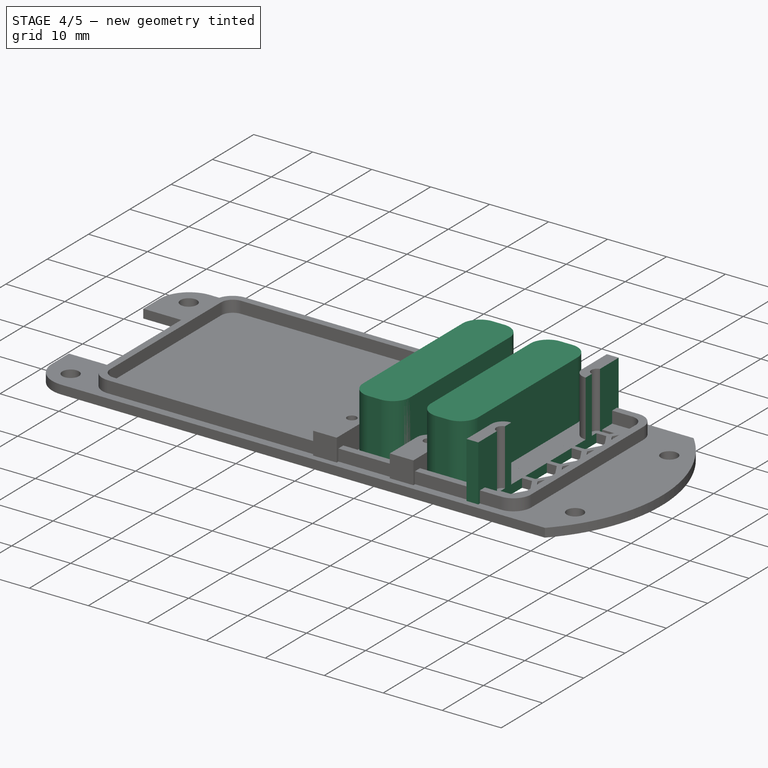
[diagram: stage 4 of 5 — iso view after this stage's code; geometry added in this stage tinted green]
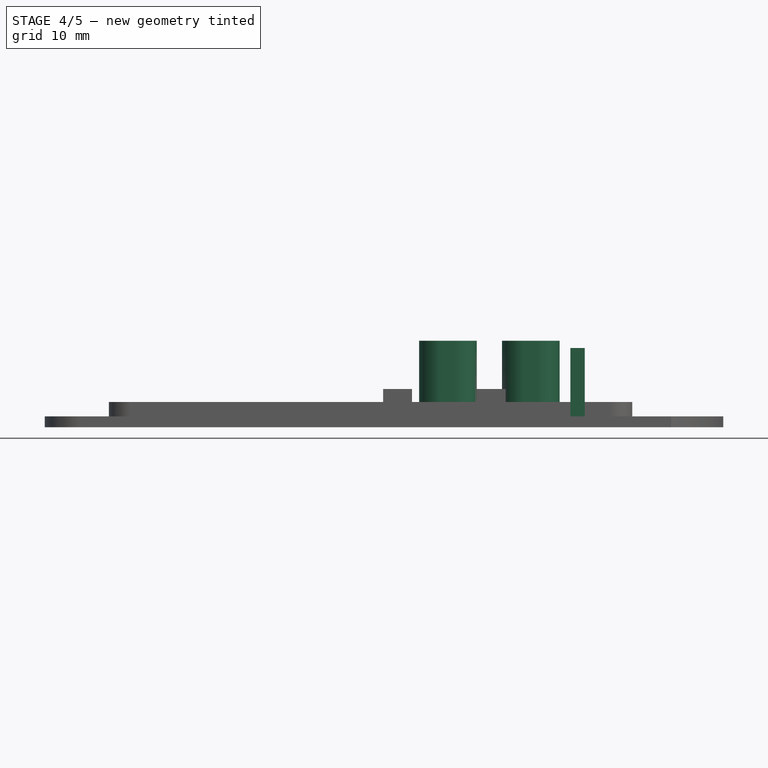
[diagram: stage 4 of 5 — front view after this stage's code; geometry added in this stage tinted green]
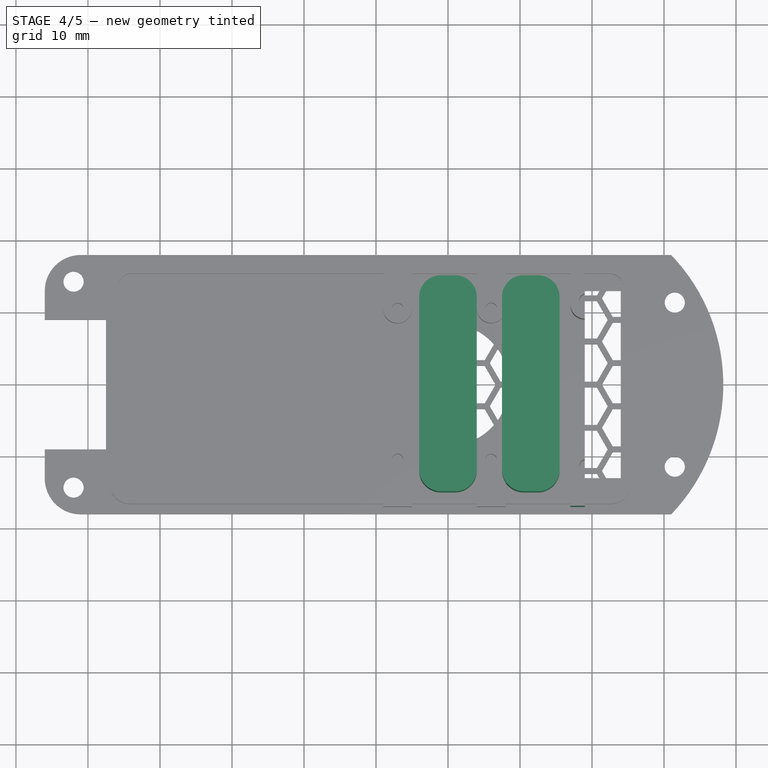
[diagram: stage 4 of 5 — top view after this stage's code; geometry added in this stage tinted green]
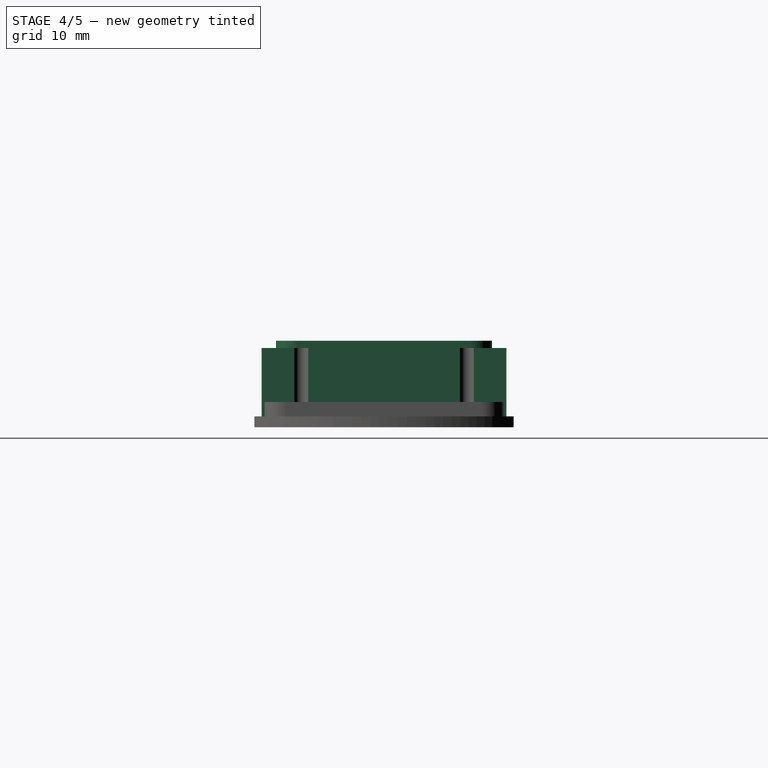
[diagram: stage 4 of 5 — right view after this stage's code; geometry added in this stage tinted green]
FEATURE [App::Part] Part006  label="attachment part"
  Group = -> [Cut001002]
  Origin = -> Origin008
  Placement = pos=(-45,1.29e-14,25) rot=(0,0,-1;4.71239rad)
FEATURE [Part::Box] Box012  label="camera extract 1"
  AttacherType = Attacher::AttachEngine3D
  Height = 10
  Length = 8
  Placement = pos=(0,-15,0) rot=(0,0,1;0rad)
  Width = 30
  expr: .Placement.Base.y = -Width / 2
FEATURE [Part::Fillet] Fillet001  label="camera extract 1 fillet"
  Base = -> Box012
  Edges = 4 edges r=3: [Edge1,Edge3,Edge5,Edge7]
FEATURE [Part::FeaturePython] Array006  label="camera extract 1 array"  # Draft array (typed FeaturePython)
  Angle = 360
  ArrayType = 0
  Axis = (0,0,1)
  Base = -> Fillet001
  Center = (0,0,0)
  Count = 2
  ExpandArray = false
  Fuse = false
  IntervalAxis = (0,0,0)
  IntervalX = (11.5,0,0)
  IntervalY = (0,100,0)
  IntervalZ = (0,0,100)
  NumberCircles = 3
  NumberPolar = 5
  NumberX = 2
  NumberY = 1
  NumberZ = 1
  Placement = pos=(-4,0,2) rot=(0,0,1;0rad)
  PlacementList = 2 placements: [(0,0,0),(11.5,0,0)]
  RadialDistance = 50
  ScaleList = (2) [(1,1,1),(1,1,1)]
  Symmetry = 1
  TangentialDistance = 25
FEATURE [Part::Box] Box013  label="test cube"
  AttacherType = Attacher::AttachEngine3D
  Height = 21
  Length = 30
  Placement = pos=(-11,-17,0) rot=(0,0,1;0rad)
  Width = 34
  expr: .Placement.Base.y = -Width / 2
FEATURE [Part::MultiFuse] Fusion009  label="case fusion"
  Shapes = -> [Body,Body002,Body003,Body004,Body005,Array007]
FEATURE [Part::Cut] Cut002005  label="fisheye body cut"
  Base = -> Fusion009
  Tool = -> Fusion010
FEATURE [Part::MultiCommon] Common
  Shapes = -> [Box013,Cut002005]
FEATURE [App::Part] Part007  label="fisheye body part"
  Group = -> [Cut002005]
  Origin = -> Origin021
FEATURE [App::Part] Part008  label="cover part"
  Group = -> [Cut002007]
  Origin = -> Origin023
  Placement = pos=(0,-5e-16,22) rot=(1,0,0;3.14159rad)
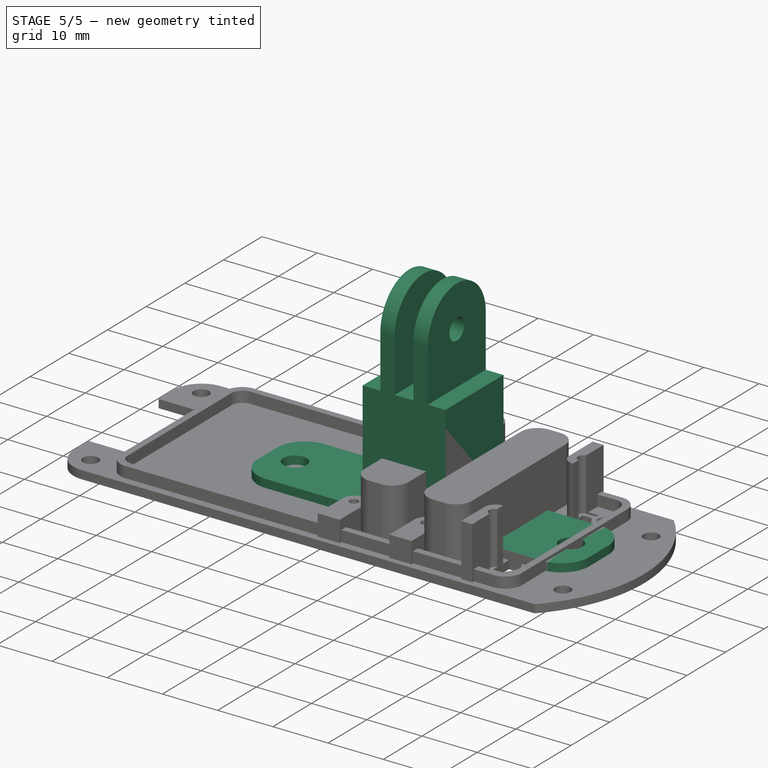
[diagram: stage 5 of 5 — iso view after this stage's code; geometry added in this stage tinted green]
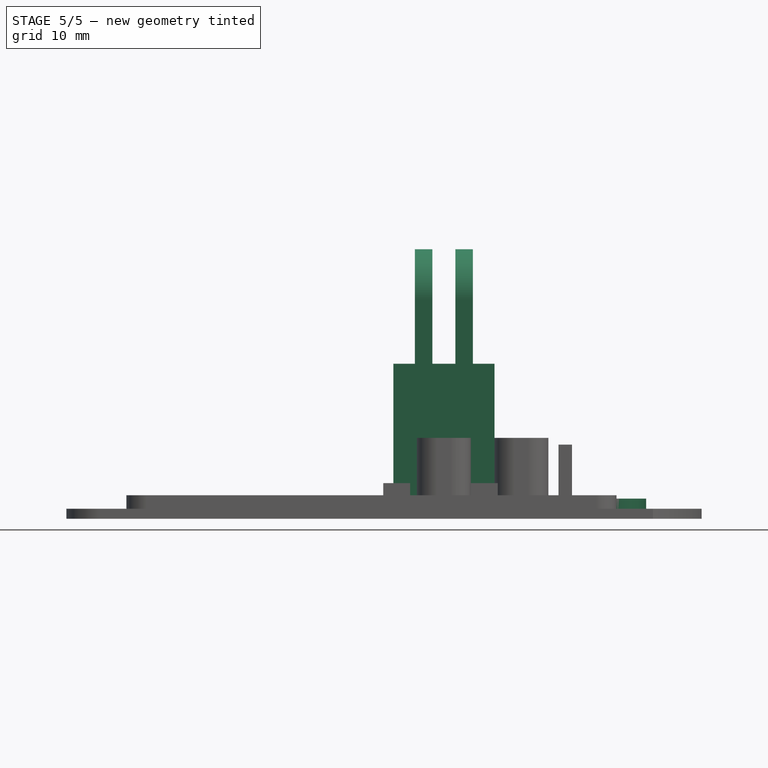
[diagram: stage 5 of 5 — front view after this stage's code; geometry added in this stage tinted green]
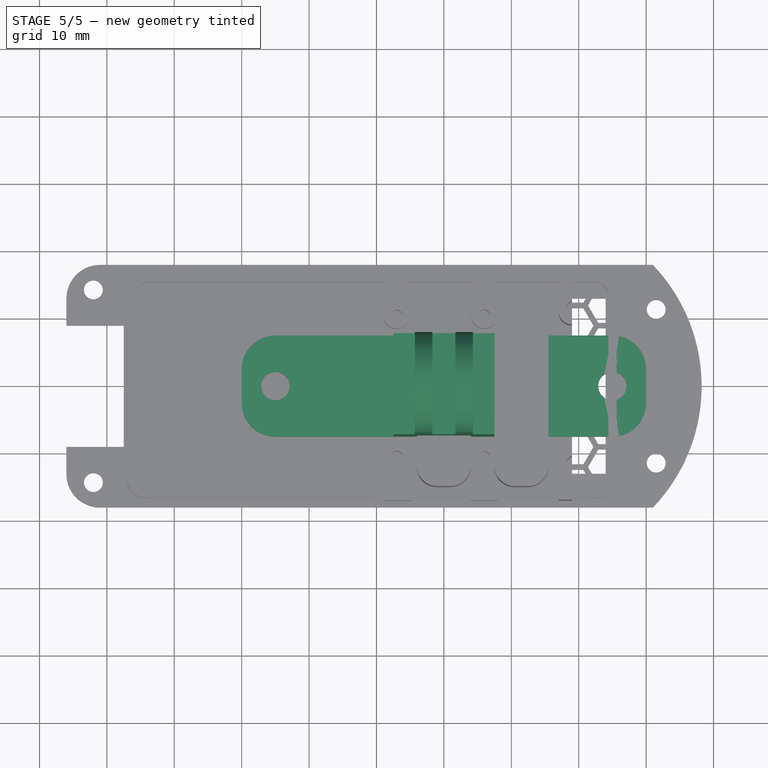
[diagram: stage 5 of 5 — top view after this stage's code; geometry added in this stage tinted green]
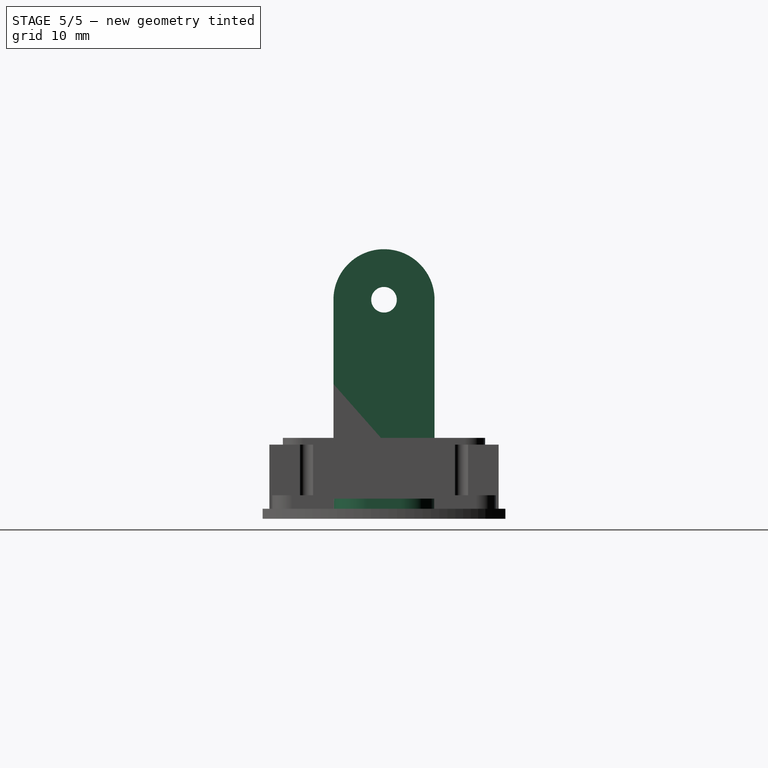
[diagram: stage 5 of 5 — right view after this stage's code; geometry added in this stage tinted green]
FEATURE [Part::Feature] Cut001001  label="side 2"
  Placement = pos=(0,0,20) rot=(0,0,1;1.5708rad)
  shape: bbox 15 x 15 x 20 mm, 16 faces (baked)
  expr: .Placement.Base.z = <<rpi3 extender>>.Height
FEATURE [Part::Box] Box  label="rpi3 attachment"
  AttacherType = Attacher::AttachEngine3D
  Height = 3
  Length = 60
  Placement = pos=(-30,-7.5,0) rot=(0,0,1;0rad)
  Width = 15
  expr: .Placement.Base.x = -Length / 2
  expr: .Placement.Base.y = -Width / 2
FEATURE [Part::Box] Box001  label="rpi3 extender"
  AttacherType = Attacher::AttachEngine3D
  Height = 20
  Length = 15
  Placement = pos=(-7.5,-7.5,0) rot=(0,0,1;0rad)
  Width = 15
  expr: Width = <<rpi3 attachment>>.Width
  expr: .Placement.Base.y = -Width / 2
  expr: .Placement.Base.x = -Length / 2
FEATURE [Part::Cylinder] Cylinder002  label="insert hole001"
  Angle = 360
  AttacherType = Attacher::AttachEngine3D
  Height = 10
  Radius = 2.1
FEATURE [Part::FeaturePython] Array005  label="insert hole array001"  # Draft array (typed FeaturePython)
  Angle = 360
  ArrayType = 0
  Axis = (0,0,1)
  Base = -> Cylinder002
  Center = (0,0,0)
  Count = 2
  ExpandArray = false
  Fuse = false
  IntervalAxis = (0,0,0)
  IntervalX = (50,0,0)
  IntervalY = (0,100,0)
  IntervalZ = (0,0,100)
  NumberCircles = 3
  NumberPolar = 5
  NumberX = 2
  NumberY = 1
  NumberZ = 1
  Placement = pos=(-25,0,0) rot=(0,0,1;0rad)
  PlacementList = 2 placements: [(0,0,0),(50,0,0)]
  RadialDistance = 50
  ScaleList = (2) [(1,1,1),(1,1,1)]
  Symmetry = 1
  TangentialDistance = 25
  expr: .Placement.Base.x = -.IntervalX.x / 2
  expr: .IntervalX.x = <<rpi3 attachment>>.Length - 10mm
FEATURE [Part::Fillet] Fillet  label="rpi3 attachment fillet"
  Base = -> Box
  Edges = 4 edges r=5: [Edge1,Edge3,Edge5,Edge7]
FEATURE [Part::MultiFuse] Fusion002  label="attachment fusion"
  Shapes = -> [Box001,Fillet,Cut001001]
FEATURE [Part::Cut] Cut001002  label="arrachment cut"
  Base = -> Fusion002
  Tool = -> Array005
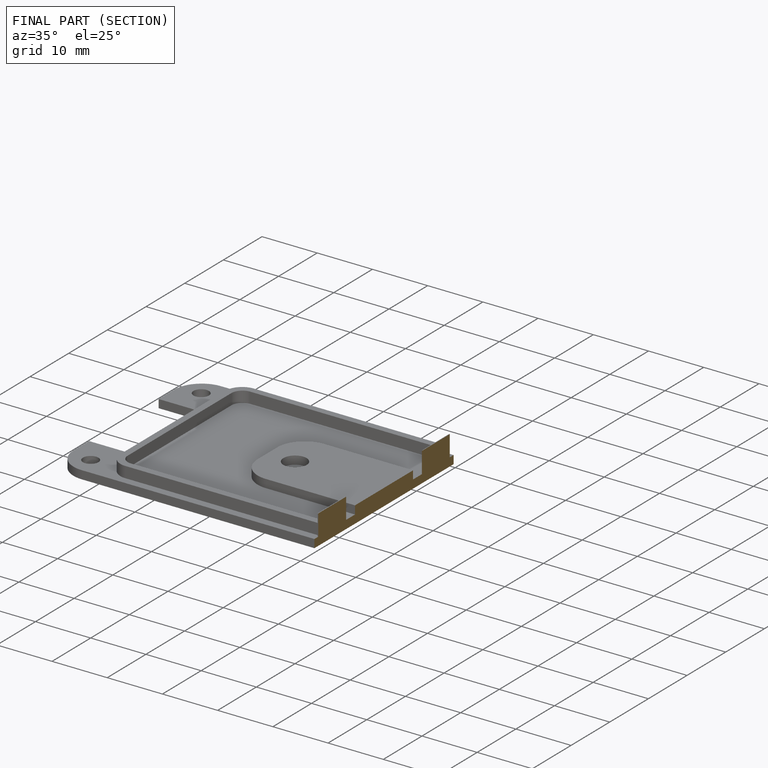
[diagram: finished part — half-section view (interior)]
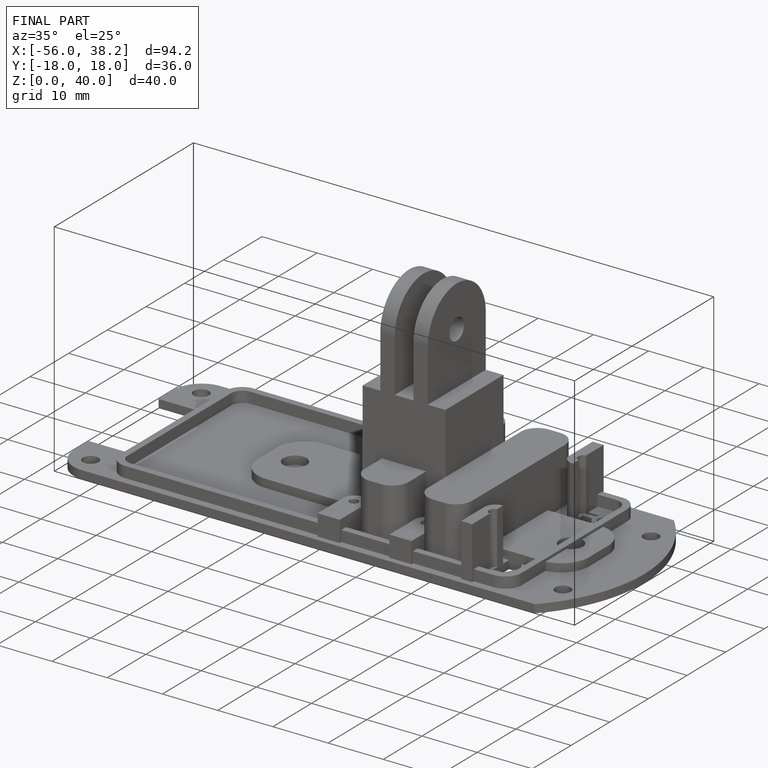
[diagram: finished part — iso view with bounding-box wireframe]
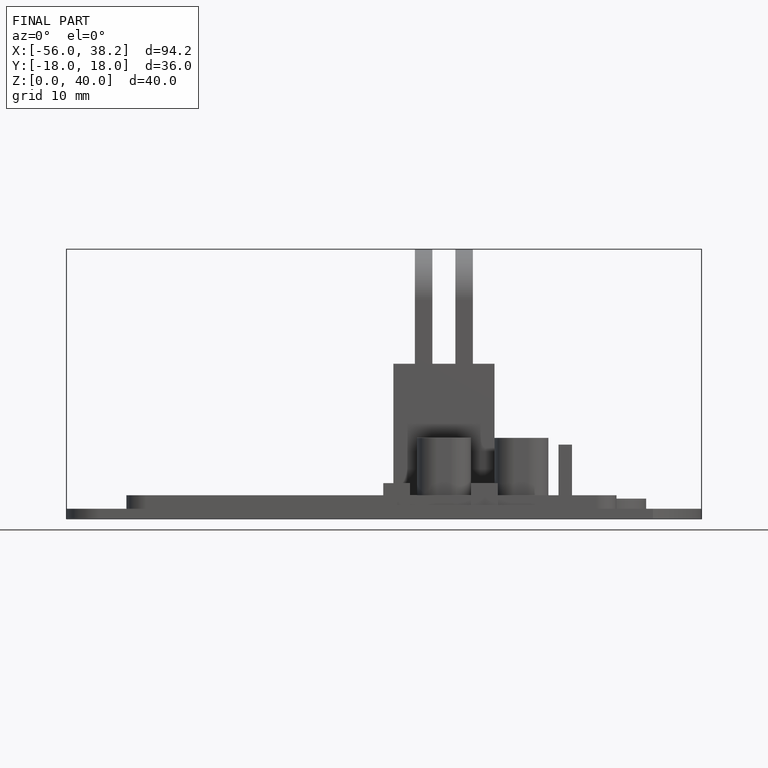
[diagram: finished part — front view with bounding-box wireframe]
